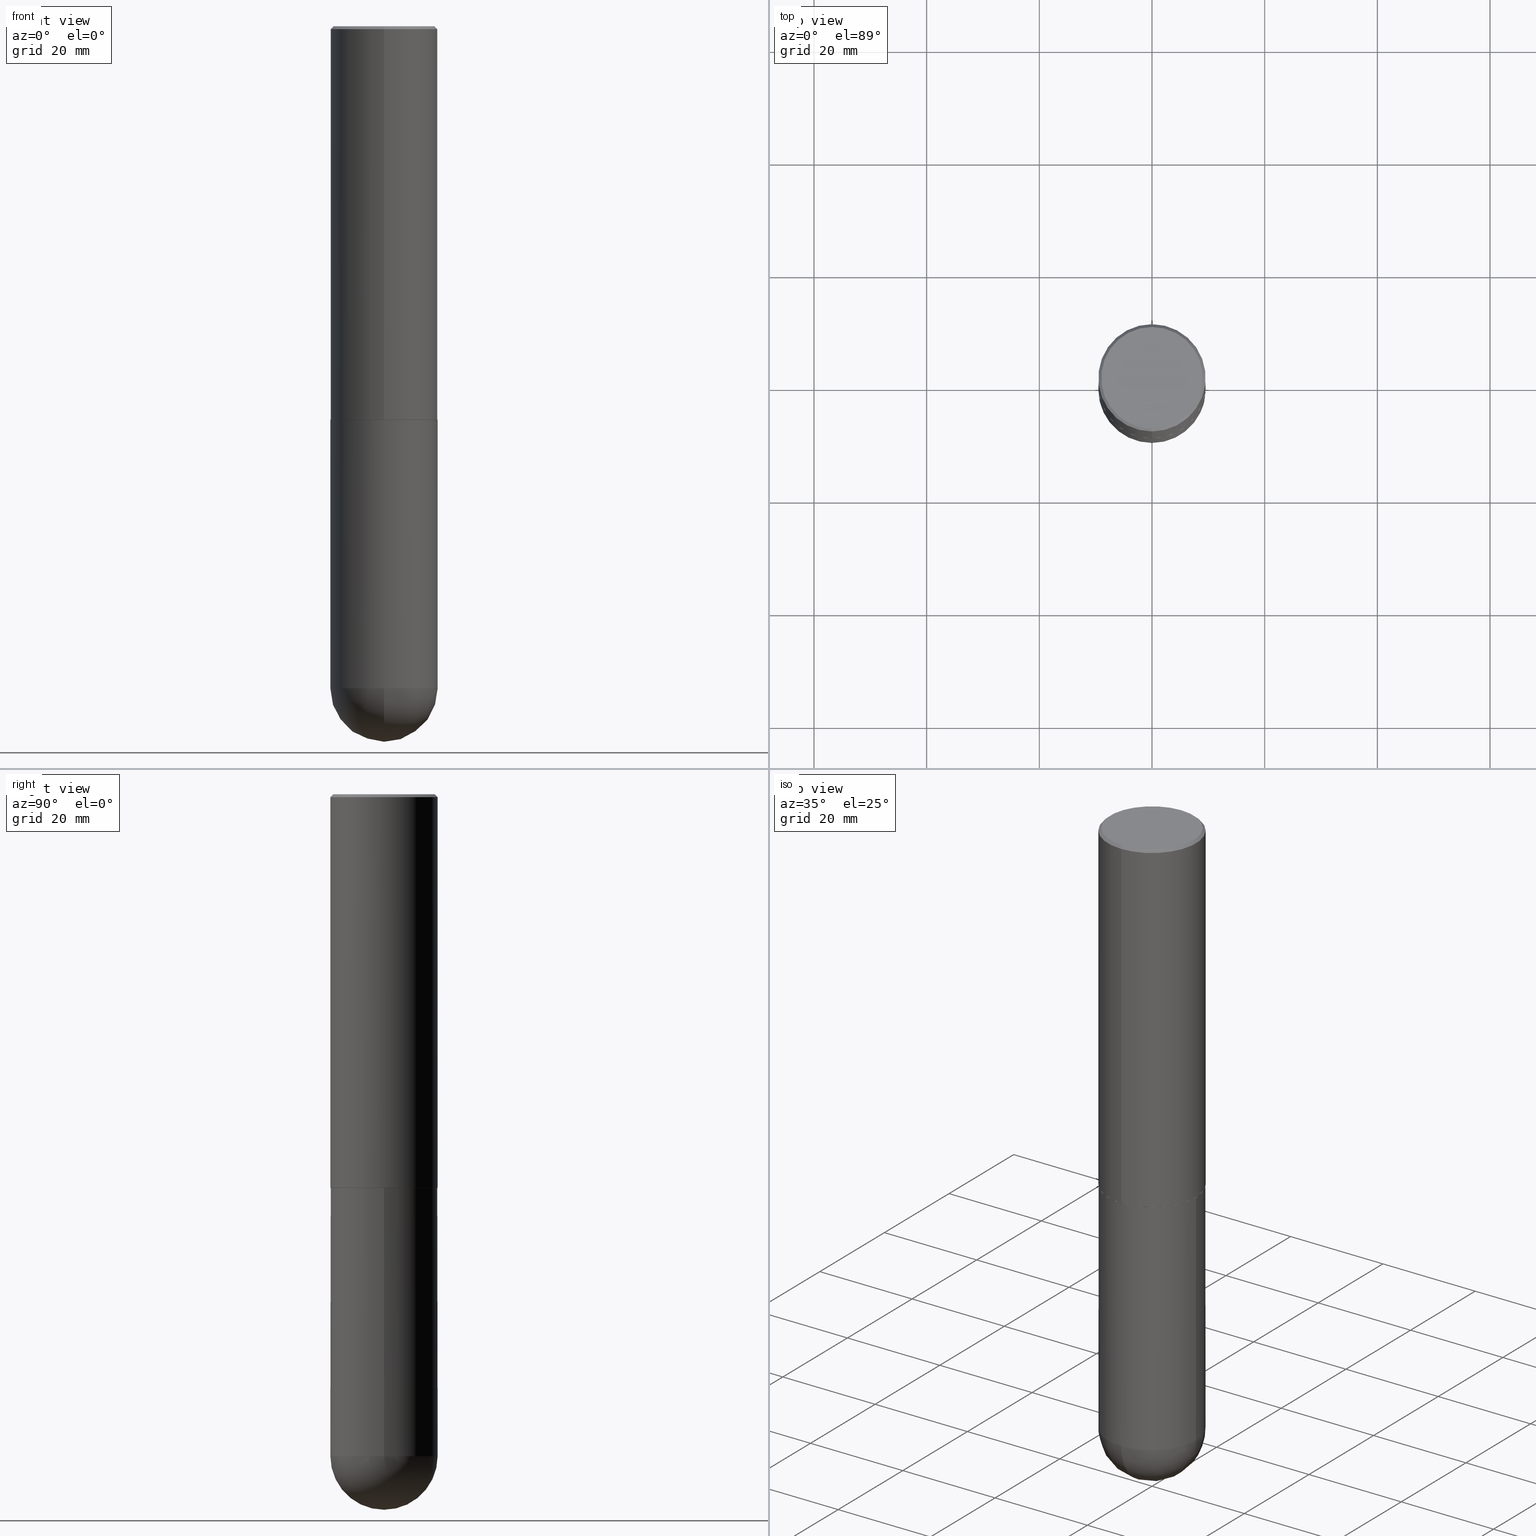
[diagram: canonical four-view strip — front | top / right | iso, engineering-drawing reading convention]
A machine part, canonical four-view strip (front | top / right | iso — engineering-drawing reading convention). The complete STEP part file that produces these views, byte-faithful:
ISO-10303-21;
HEADER;
FILE_DESCRIPTION (( 'STEP AP203' ),
    '1' );
FILE_NAME ('31778.STEP',
    '2024-02-21T16:52:32',
    ( '' ),
    ( '' ),
    'SwSTEP 2.0',
    'SolidWorks 2023',
    '' );
FILE_SCHEMA (( 'CONFIG_CONTROL_DESIGN' ));
ENDSEC;

DATA;
#1 = SPHERICAL_SURFACE ( 'NONE', #183, 0.3750000000000003886 ) ;
#2 = APPROVAL_STATUS ( 'not_yet_approved' ) ;
#3 = DIRECTION ( 'NONE',  ( 6.982962677686266711E-15, 1.000000000000000000, -2.913971193241878005E-15 ) ) ;
#4 = VERTEX_POINT ( 'NONE', #203 ) ;
#5 = CARTESIAN_POINT ( 'NONE',  ( 6.725039217009124520E-29, -9.601573681818649859E-15, -2.750000000000000000 ) ) ;
#6 = ORIENTED_EDGE ( 'NONE', *, *, #17, .T. ) ;
#7 = CARTESIAN_POINT ( 'NONE',  ( 2.664535259100411985E-15, 0.3749999999999907851, -2.749000000000000998 ) ) ;
#8 = ORIENTED_EDGE ( 'NONE', *, *, #128, .T. ) ;
#9 = ADVANCED_FACE ( 'NONE', ( #50 ), #375, .F. ) ;
#10 = AXIS2_PLACEMENT_3D ( 'NONE', #367, #11, #366 ) ;
#11 = DIRECTION ( 'NONE',  ( -2.445468806185136597E-29, 3.491481338843145583E-15, 1.000000000000000000 ) ) ;
#12 = VERTEX_POINT ( 'NONE', #169 ) ;
#13 = CARTESIAN_POINT ( 'NONE',  ( -2.572686749164323153E-15, -0.3750000000000000555, -0.01999999999999877570 ) ) ;
#14 = CC_DESIGN_PERSON_AND_ORGANIZATION_ASSIGNMENT ( #58, #307, ( #121 ) ) ;
#15 = CARTESIAN_POINT ( 'NONE',  ( 1.131029322860625676E-28, -1.614810119214955014E-14, -4.625000000000000000 ) ) ;
#16 = DIRECTION ( 'NONE',  ( 1.000000000000000000, -6.982962677686270655E-15, 0.000000000000000000 ) ) ;
#17 = EDGE_CURVE ( 'NONE', #292, #392, #373, .T. ) ;
#18 = LOCAL_TIME ( 11, 52, 32.00000000000000000, #253 ) ;
#19 = ORIENTED_EDGE ( 'NONE', *, *, #251, .T. ) ;
#20 = EDGE_CURVE ( 'NONE', #12, #4, #148, .T. ) ;
#21 = DIRECTION ( 'NONE',  ( 5.024295867790978808E-15, 0.7071067811869604647, 0.7071067811861345698 ) ) ;
#22 = ORIENTED_EDGE ( 'NONE', *, *, #257, .F. ) ;
#23 = PERSON_AND_ORGANIZATION ( #266, #273 ) ;
#24 = CARTESIAN_POINT ( 'NONE',  ( 6.724333203881776767E-29, -9.602584732800784249E-15, -2.750000000000000000 ) ) ;
#25 = DATE_AND_TIME ( #383, #18 ) ;
#26 = DIMENSIONAL_EXPONENTS ( 1.000000000000000000, 0.000000000000000000, 0.000000000000000000, 0.000000000000000000, 0.000000000000000000, 0.000000000000000000, 0.000000000000000000 ) ;
#27 = AXIS2_PLACEMENT_3D ( 'NONE', #15, #157, #16 ) ;
#28 = ADVANCED_FACE ( 'NONE', ( #316 ), #247, .T. ) ;
#29 = CLOSED_SHELL ( 'NONE', ( #28, #134, #364, #236, #84, #275, #9, #109 ) ) ;
#30 = PERSON_AND_ORGANIZATION_ROLE ( 'creator' ) ;
#31 = CALENDAR_DATE ( 2024, 21, 2 ) ;
#32 = DIRECTION ( 'NONE',  ( -2.445468806185136877E-29, 3.491481338843145188E-15, 1.000000000000000000 ) ) ;
#33 = VECTOR ( 'NONE', #32, 39.37007874015748143 ) ;
#34 = AXIS2_PLACEMENT_3D ( 'NONE', #361, #76, #193 ) ;
#35 = AXIS2_PLACEMENT_3D ( 'NONE', #163, #41, #226 ) ;
#36 = CARTESIAN_POINT ( 'NONE',  ( -4.804403837961357100E-45, 6.860857953616112441E-31, 1.964820920350397448E-16 ) ) ;
#37 = EDGE_LOOP ( 'NONE', ( #208, #185 ) ) ;
#38 = ORIENTED_EDGE ( 'NONE', *, *, #382, .T. ) ;
#39 = CYLINDRICAL_SURFACE ( 'NONE', #57, 0.3750000000000002220 ) ;
#40 = ORIENTED_EDGE ( 'NONE', *, *, #406, .T. ) ;
#41 = DIRECTION ( 'NONE',  ( -2.445212074138828297E-29, 3.491848993745739476E-15, 1.000000000000000000 ) ) ;
#42 = CARTESIAN_POINT ( 'NONE',  ( 2.618611004132417464E-15, 0.3749999999999903966, -2.750000000000000888 ) ) ;
#43 = FACE_OUTER_BOUND ( 'NONE', #356, .T. ) ;
#44 = DIRECTION ( 'NONE',  ( 2.438088387897960049E-29, -3.491481338843145188E-15, -1.000000000000000000 ) ) ;
#45 = DIRECTION ( 'NONE',  ( 1.000000000000000000, -6.982962677686270655E-15, 0.000000000000000000 ) ) ;
#46 = CONICAL_SURFACE ( 'NONE', #201, 0.3739999999999999991, 0.7853981633980288146 ) ;
#47 = CIRCLE ( 'NONE', #394, 0.3749999999999999445 ) ;
#48 = DIRECTION ( 'NONE',  ( -2.445468806185136877E-29, 3.491481338843145188E-15, 1.000000000000000000 ) ) ;
#49 = CLOSED_SHELL ( 'NONE', ( #397, #151, #175, #323, #370 ) ) ;
#50 = FACE_OUTER_BOUND ( 'NONE', #37, .T. ) ;
#51 = VERTEX_POINT ( 'NONE', #332 ) ;
#52 =( NAMED_UNIT ( * ) SI_UNIT ( $, .STERADIAN. ) SOLID_ANGLE_UNIT ( ) );
#53 = LINE ( 'NONE', #139, #89 ) ;
#54 = VERTEX_POINT ( 'NONE', #79 ) ;
#55 = CARTESIAN_POINT ( 'NONE',  ( 6.725039217009124520E-29, -9.601573681818649859E-15, -2.750000000000000000 ) ) ;
#56 = AXIS2_PLACEMENT_3D ( 'NONE', #297, #129, #135 ) ;
#57 = AXIS2_PLACEMENT_3D ( 'NONE', #159, #293, #106 ) ;
#58 = PERSON_AND_ORGANIZATION ( #266, #273 ) ;
#59 = DIRECTION ( 'NONE',  ( 6.982962677686266711E-15, 1.000000000000000000, -3.494488891895537218E-15 ) ) ;
#60 = EDGE_CURVE ( 'NONE', #395, #246, #330, .T. ) ;
#61 = COORDINATED_UNIVERSAL_TIME_OFFSET ( 5, 0, .BEHIND. ) ;
#62 = DIRECTION ( 'NONE',  ( -6.982962677686266711E-15, -1.000000000000000000, 3.491848993745739476E-15 ) ) ;
#63 = ORIENTED_EDGE ( 'NONE', *, *, #128, .F. ) ;
#64 = DATE_AND_TIME ( #248, #187 ) ;
#65 = DIRECTION ( 'NONE',  ( -2.445212074138828297E-29, 3.491848993745739476E-15, 1.000000000000000000 ) ) ;
#66 = ORIENTED_EDGE ( 'NONE', *, *, #410, .T. ) ;
#67 = MANIFOLD_SOLID_BREP ( 'Body-Move/Copy2[1]', #49 ) ;
#68 = VECTOR ( 'NONE', #48, 39.37007874015748143 ) ;
#69 = EDGE_CURVE ( 'NONE', #295, #12, #235, .T. ) ;
#70 = DIRECTION ( 'NONE',  ( -1.000000000000000000, 6.982962677686265922E-15, -4.876176775795935793E-29 ) ) ;
#71 = EDGE_LOOP ( 'NONE', ( #231, #264 ) ) ;
#72 = DIRECTION ( 'NONE',  ( -4.851104656540953231E-15, -0.7071067811865484609, -0.7071067811865465735 ) ) ;
#73 = APPROVAL ( #388, 'UNSPECIFIED' ) ;
#74 = FACE_OUTER_BOUND ( 'NONE', #92, .T. ) ;
#75 = ORIENTED_EDGE ( 'NONE', *, *, #69, .T. ) ;
#76 = DIRECTION ( 'NONE',  ( -2.445212074138828297E-29, 3.491848993745739476E-15, 1.000000000000000000 ) ) ;
#77 = CARTESIAN_POINT ( 'NONE',  ( 4.890424148277678035E-31, -6.983697987491508978E-17, -0.02000000000000008715 ) ) ;
#78 = ORIENTED_EDGE ( 'NONE', *, *, #251, .F. ) ;
#79 = CARTESIAN_POINT ( 'NONE',  ( -2.618611004132285330E-15, -0.3750000000000100475, -2.748999999999999222 ) ) ;
#80 = CARTESIAN_POINT ( 'NONE',  ( -0.3750000000000000555, -1.021030217788372194E-14, -2.750000000000000000 ) ) ;
#81 = DIRECTION ( 'NONE',  ( -6.982962677686265922E-15, -1.000000000000000000, 2.913971193241877216E-15 ) ) ;
#82 = CYLINDRICAL_SURFACE ( 'NONE', #240, 0.3750000000000002220 ) ;
#83 = CONICAL_SURFACE ( 'NONE', #289, 0.3749999999999999445, 0.7853981633974461696 ) ;
#84 = ADVANCED_FACE ( 'NONE', ( #43 ), #82, .T. ) ;
#85 = AXIS2_PLACEMENT_3D ( 'NONE', #274, #228, #45 ) ;
#86 = CARTESIAN_POINT ( 'NONE',  ( 2.618611004132350016E-15, 0.3749999999999998890, -0.02000000000000139513 ) ) ;
#87 = DIRECTION ( 'NONE',  ( 4.937700262164536998E-15, 0.7071067811865435759, -0.7071067811865514585 ) ) ;
#88 = ORIENTED_EDGE ( 'NONE', *, *, #113, .F. ) ;
#89 = VECTOR ( 'NONE', #114, 39.37007874015748143 ) ;
#90 = CC_DESIGN_APPROVAL ( #271, ( #341 ) ) ;
#91 = VERTEX_POINT ( 'NONE', #296 ) ;
#92 = EDGE_LOOP ( 'NONE', ( #280, #132, #209, #390, #267 ) ) ;
#93 = DATE_AND_TIME ( #408, #119 ) ;
#94 = DIRECTION ( 'NONE',  ( 2.445212074138828297E-29, -3.491848993745739476E-15, -1.000000000000000000 ) ) ;
#95 = PERSON_AND_ORGANIZATION ( #266, #273 ) ;
#96 = PERSON_AND_ORGANIZATION_ROLE ( 'design_supplier' ) ;
#97 = EDGE_CURVE ( 'NONE', #227, #395, #340, .T. ) ;
#98 = VECTOR ( 'NONE', #21, 39.37007874015748143 ) ;
#99 = ORIENTED_EDGE ( 'NONE', *, *, #60, .T. ) ;
#100 = CARTESIAN_POINT ( 'NONE',  ( -2.611628041454596160E-15, -0.3740000000000096581, -2.749999999999998224 ) ) ;
#101 = CARTESIAN_POINT ( 'NONE',  ( 6.721887991807639758E-29, -9.599092883807038608E-15, -2.749000000000000110 ) ) ;
#102 = EDGE_LOOP ( 'NONE', ( #261, #360, #322, #216 ) ) ;
#103 = LOCAL_TIME ( 11, 52, 32.00000000000000000, #174 ) ;
#104 = AXIS2_PLACEMENT_3D ( 'NONE', #36, #353, #62 ) ;
#105 = ORIENTED_EDGE ( 'NONE', *, *, #242, .T. ) ;
#106 = DIRECTION ( 'NONE',  ( -6.982962677686266711E-15, -1.000000000000000000, 3.491848993745739870E-15 ) ) ;
#107 = ORIENTED_EDGE ( 'NONE', *, *, #382, .F. ) ;
#108 = DIRECTION ( 'NONE',  ( 6.982962677686265922E-15, 1.000000000000000000, 0.000000000000000000 ) ) ;
#109 = ADVANCED_FACE ( 'NONE', ( #265 ), #196, .F. ) ;
#110 = DIRECTION ( 'NONE',  ( -6.982962677686266711E-15, -1.000000000000000000, 3.494488891895537218E-15 ) ) ;
#111 = CIRCLE ( 'NONE', #104, 0.3549999999999997602 ) ;
#112 = CARTESIAN_POINT ( 'NONE',  ( 6.724333203881775646E-29, -9.602584732800781093E-15, -2.749999999999999556 ) ) ;
#113 = EDGE_CURVE ( 'NONE', #398, #4, #372, .T. ) ;
#114 = DIRECTION ( 'NONE',  ( -2.445212074138828297E-29, 3.491848993745739476E-15, 1.000000000000000000 ) ) ;
#115 = ORIENTED_EDGE ( 'NONE', *, *, #60, .F. ) ;
#116 =( CONVERSION_BASED_UNIT ( 'INCH', #374 ) LENGTH_UNIT ( ) NAMED_UNIT ( #26 ) );
#117 = CC_DESIGN_PERSON_AND_ORGANIZATION_ASSIGNMENT ( #146, #30, ( #341 ) ) ;
#118 = VECTOR ( 'NONE', #65, 39.37007874015748143 ) ;
#119 = LOCAL_TIME ( 11, 52, 32.00000000000000000, #281 ) ;
#120 = DIRECTION ( 'NONE',  ( -1.000000000000000000, 6.982962677686266711E-15, -4.883557194083113462E-29 ) ) ;
#121 = SECURITY_CLASSIFICATION ( '', '', #123 ) ;
#122 = DATE_TIME_ROLE ( 'creation_date' ) ;
#123 = SECURITY_CLASSIFICATION_LEVEL ( 'unclassified' ) ;
#124 = CARTESIAN_POINT ( 'NONE',  ( 1.097917345069237163E-28, -1.662228356028959886E-14, -4.625000000000000000 ) ) ;
#125 = ORIENTED_EDGE ( 'NONE', *, *, #17, .F. ) ;
#126 = COORDINATED_UNIVERSAL_TIME_OFFSET ( 5, 0, .BEHIND. ) ;
#127 = DIRECTION ( 'NONE',  ( -2.445468806185136597E-29, 3.491481338843145583E-15, 1.000000000000000000 ) ) ;
#128 = EDGE_CURVE ( 'NONE', #295, #398, #268, .T. ) ;
#129 = DIRECTION ( 'NONE',  ( -2.445468806185136597E-29, 3.491481338843145583E-15, 1.000000000000000000 ) ) ;
#130 = ORIENTED_EDGE ( 'NONE', *, *, #113, .T. ) ;
#131 = AXIS2_PLACEMENT_3D ( 'NONE', #55, #176, #191 ) ;
#132 = ORIENTED_EDGE ( 'NONE', *, *, #257, .T. ) ;
#133 = APPLICATION_CONTEXT ( 'configuration controlled 3d designs of mechanical parts and assemblies' ) ;
#134 = ADVANCED_FACE ( 'NONE', ( #190 ), #39, .T. ) ;
#135 = DIRECTION ( 'NONE',  ( 1.000000000000000000, -6.982962677686265922E-15, 4.876176775795935793E-29 ) ) ;
#136 = DIRECTION ( 'NONE',  ( 1.000000000000000000, -6.982962677686270655E-15, 0.000000000000000000 ) ) ;
#137 = DIRECTION ( 'NONE',  ( -2.445212074138828297E-29, 3.491848993745739476E-15, 1.000000000000000000 ) ) ;
#138 = AXIS2_PLACEMENT_3D ( 'NONE', #254, #178, #260 ) ;
#139 = CARTESIAN_POINT ( 'NONE',  ( -2.618611004132351594E-15, -0.3750000000000002220, 1.309443372654653240E-15 ) ) ;
#140 = DIRECTION ( 'NONE',  ( 0.000000000000000000, 0.000000000000000000, 1.000000000000000000 ) ) ;
#141 = AXIS2_PLACEMENT_3D ( 'NONE', #24, #239, #172 ) ;
#142 = ORIENTED_EDGE ( 'NONE', *, *, #69, .F. ) ;
#143 = DIRECTION ( 'NONE',  ( -6.982962677686266711E-15, -1.000000000000000000, 3.494488891895537218E-15 ) ) ;
#144 = EDGE_CURVE ( 'NONE', #54, #392, #155, .T. ) ;
#145 = EDGE_LOOP ( 'NONE', ( #105, #6, #306, #363 ) ) ;
#146 = PERSON_AND_ORGANIZATION ( #266, #273 ) ;
#147 = CARTESIAN_POINT ( 'NONE',  ( 1.097917345069237163E-28, -1.662228356028959886E-14, -4.625000000000000000 ) ) ;
#148 = LINE ( 'NONE', #86, #411 ) ;
#149 = ORIENTED_EDGE ( 'NONE', *, *, #20, .F. ) ;
#150 = APPROVAL_PERSON_ORGANIZATION ( #344, #73, #310 ) ;
#151 = ADVANCED_FACE ( 'NONE', ( #245 ), #302, .T. ) ;
#152 = PRODUCT_DEFINITION_SHAPE ( 'NONE', 'NONE',  #341 ) ;
#153 = DATE_TIME_ROLE ( 'classification_date' ) ;
#154 = VECTOR ( 'NONE', #250, 39.37007874015748143 ) ;
#155 = CIRCLE ( 'NONE', #34, 0.3750000000000004441 ) ;
#156 =( GEOMETRIC_REPRESENTATION_CONTEXT ( 3 ) GLOBAL_UNCERTAINTY_ASSIGNED_CONTEXT ( ( #223 ) ) GLOBAL_UNIT_ASSIGNED_CONTEXT ( ( #116, #167, #52 ) ) REPRESENTATION_CONTEXT ( 'NONE', 'WORKASPACE' ) );
#157 = DIRECTION ( 'NONE',  ( -2.445468806185136597E-29, 3.491481338843145583E-15, 1.000000000000000000 ) ) ;
#158 = EDGE_LOOP ( 'NONE', ( #125, #189, #243, #107 ) ) ;
#159 = CARTESIAN_POINT ( 'NONE',  ( 0.000000000000000000, 0.000000000000000000, 0.000000000000000000 ) ) ;
#160 = ORIENTED_EDGE ( 'NONE', *, *, #285, .F. ) ;
#161 = FACE_OUTER_BOUND ( 'NONE', #308, .T. ) ;
#162 = DIRECTION ( 'NONE',  ( -2.445212074138828297E-29, 3.491848993745739476E-15, 1.000000000000000000 ) ) ;
#163 = CARTESIAN_POINT ( 'NONE',  ( 6.724333203881775646E-29, -9.602584732800781093E-15, -2.749999999999999556 ) ) ;
#164 = AXIS2_PLACEMENT_3D ( 'NONE', #5, #127, #219 ) ;
#165 = CC_DESIGN_SECURITY_CLASSIFICATION ( #121, ( #336 ) ) ;
#166 = AXIS2_PLACEMENT_3D ( 'NONE', #359, #326, #401 ) ;
#167 =( NAMED_UNIT ( * ) PLANE_ANGLE_UNIT ( ) SI_UNIT ( $, .RADIAN. ) );
#168 = EDGE_CURVE ( 'NONE', #54, #398, #53, .T. ) ;
#169 = CARTESIAN_POINT ( 'NONE',  ( 2.548781377355486324E-15, 0.3549999999999997602, -1.043124300744696816E-15 ) ) ;
#170 = EDGE_CURVE ( 'NONE', #392, #4, #288, .T. ) ;
#171 = ORIENTED_EDGE ( 'NONE', *, *, #97, .F. ) ;
#172 = DIRECTION ( 'NONE',  ( -6.982962677686265922E-15, -1.000000000000000000, 3.491848993745739476E-15 ) ) ;
#173 = ORIENTED_EDGE ( 'NONE', *, *, #217, .T. ) ;
#174 = COORDINATED_UNIVERSAL_TIME_OFFSET ( 5, 0, .BEHIND. ) ;
#175 = ADVANCED_FACE ( 'NONE', ( #211 ), #1, .T. ) ;
#176 = DIRECTION ( 'NONE',  ( -2.445468806185136597E-29, 3.491481338843145583E-15, 1.000000000000000000 ) ) ;
#177 = DIRECTION ( 'NONE',  ( 1.000000000000000000, 0.000000000000000000, 0.000000000000000000 ) ) ;
#178 = DIRECTION ( 'NONE',  ( -1.000000000000000000, 7.105427357601001070E-15, -4.926315508542082329E-29 ) ) ;
#179 = PERSON_AND_ORGANIZATION ( #266, #273 ) ;
#180 = CARTESIAN_POINT ( 'NONE',  ( 6.724333203881775646E-29, -9.602584732800781093E-15, -2.749999999999999556 ) ) ;
#181 = APPROVAL_DATE_TIME ( #25, #73 ) ;
#182 = EDGE_CURVE ( 'NONE', #259, #54, #345, .T. ) ;
#183 = AXIS2_PLACEMENT_3D ( 'NONE', #124, #258, #3 ) ;
#184 = DIRECTION ( 'NONE',  ( -2.445212074138828297E-29, 3.491848993745739476E-15, 1.000000000000000000 ) ) ;
#185 = ORIENTED_EDGE ( 'NONE', *, *, #313, .F. ) ;
#186 = AXIS2_PLACEMENT_3D ( 'NONE', #270, #298, #110 ) ;
#187 = LOCAL_TIME ( 11, 52, 32.00000000000000000, #126 ) ;
#188 = DIRECTION ( 'NONE',  ( 1.000000000000000000, -6.982962677686265922E-15, 4.883557194083112340E-29 ) ) ;
#189 = ORIENTED_EDGE ( 'NONE', *, *, #313, .T. ) ;
#190 = FACE_OUTER_BOUND ( 'NONE', #377, .T. ) ;
#191 = DIRECTION ( 'NONE',  ( 1.000000000000000000, -6.982962677686266711E-15, 0.000000000000000000 ) ) ;
#192 = ORIENTED_EDGE ( 'NONE', *, *, #406, .F. ) ;
#193 = DIRECTION ( 'NONE',  ( -6.982962677686265922E-15, -1.000000000000000000, 2.913971193241877216E-15 ) ) ;
#194 = DIRECTION ( 'NONE',  ( -2.445212074138828297E-29, 3.491848993745739476E-15, 1.000000000000000000 ) ) ;
#195 = EDGE_LOOP ( 'NONE', ( #63, #78, #309, #40 ) ) ;
#196 = PLANE ( 'NONE',  #197 ) ;
#197 = AXIS2_PLACEMENT_3D ( 'NONE', #237, #329, #328 ) ;
#198 = CARTESIAN_POINT ( 'NONE',  ( -2.572686749164323153E-15, -0.3750000000000000555, -0.01999999999999877570 ) ) ;
#199 = CYLINDRICAL_SURFACE ( 'NONE', #56, 0.3750000000000001110 ) ;
#200 = CARTESIAN_POINT ( 'NONE',  ( 0.000000000000000000, 0.000000000000000000, 0.000000000000000000 ) ) ;
#201 = AXIS2_PLACEMENT_3D ( 'NONE', #321, #184, #381 ) ;
#202 = APPLICATION_PROTOCOL_DEFINITION ( 'international standard', 'config_control_design', 1994, #312 ) ;
#203 = CARTESIAN_POINT ( 'NONE',  ( 2.618611004132350016E-15, 0.3749999999999998890, -0.02000000000000139513 ) ) ;
#204 = VERTEX_POINT ( 'NONE', #284 ) ;
#205 = LOCAL_TIME ( 11, 52, 32.00000000000000000, #61 ) ;
#206 = AXIS2_PLACEMENT_3D ( 'NONE', #180, #315, #389 ) ;
#207 = ORIENTED_EDGE ( 'NONE', *, *, #170, .T. ) ;
#208 = ORIENTED_EDGE ( 'NONE', *, *, #242, .F. ) ;
#209 = ORIENTED_EDGE ( 'NONE', *, *, #263, .F. ) ;
#210 = APPROVAL_DATE_TIME ( #93, #278 ) ;
#211 = FACE_OUTER_BOUND ( 'NONE', #102, .T. ) ;
#212 = CARTESIAN_POINT ( 'NONE',  ( 2.618611004132463218E-15, 0.3749999999999838463, -4.625000000000000888 ) ) ;
#213 = AXIS2_PLACEMENT_3D ( 'NONE', #234, #365, #136 ) ;
#214 = APPROVAL_STATUS ( 'not_yet_approved' ) ;
#215 = CARTESIAN_POINT ( 'NONE',  ( -2.664535259100265651E-15, -0.3750000000000165978, -4.624999999999999112 ) ) ;
#216 = ORIENTED_EDGE ( 'NONE', *, *, #348, .F. ) ;
#217 = EDGE_CURVE ( 'NONE', #91, #246, #357, .T. ) ;
#218 = APPLICATION_PROTOCOL_DEFINITION ( 'international standard', 'config_control_design', 1994, #133 ) ;
#219 = DIRECTION ( 'NONE',  ( 1.000000000000000000, -6.982962677686266711E-15, 0.000000000000000000 ) ) ;
#220 = APPROVAL_PERSON_ORGANIZATION ( #179, #271, #354 ) ;
#221 = CARTESIAN_POINT ( 'NONE',  ( -0.3750000000000001110, -1.021030217788372352E-14, -4.625000000000000000 ) ) ;
#222 = ORIENTED_EDGE ( 'NONE', *, *, #348, .T. ) ;
#223 = UNCERTAINTY_MEASURE_WITH_UNIT (LENGTH_MEASURE( 1.000000000000000082E-05 ), #116, 'distance_accuracy_value', 'NONE');
#224 = CIRCLE ( 'NONE', #131, 0.3750000000000000555 ) ;
#225 = PRODUCT ( '31778', '31778', '', ( #350 ) ) ;
#226 = DIRECTION ( 'NONE',  ( -6.982962677686266711E-15, -1.000000000000000000, 2.921762560068730595E-15 ) ) ;
#227 = VERTEX_POINT ( 'NONE', #212 ) ;
#228 = DIRECTION ( 'NONE',  ( -2.445468806185136597E-29, 3.491481338843145583E-15, 1.000000000000000000 ) ) ;
#229 = CC_DESIGN_DATE_AND_TIME_ASSIGNMENT ( #286, #153, ( #121 ) ) ;
#230 = CARTESIAN_POINT ( 'NONE',  ( -2.504081769186607427E-15, -0.3549999999999997602, 1.436088484814776552E-15 ) ) ;
#231 = ORIENTED_EDGE ( 'NONE', *, *, #263, .T. ) ;
#232 = DIRECTION ( 'NONE',  ( -2.445212074138828297E-29, 3.491848993745739476E-15, 1.000000000000000000 ) ) ;
#233 = FACE_OUTER_BOUND ( 'NONE', #379, .T. ) ;
#234 = CARTESIAN_POINT ( 'NONE',  ( 1.131029322860625676E-28, -1.614810119214955014E-14, -4.625000000000000000 ) ) ;
#235 = CIRCLE ( 'NONE', #386, 0.3549999999999997602 ) ;
#236 = ADVANCED_FACE ( 'NONE', ( #351 ), #83, .T. ) ;
#237 = CARTESIAN_POINT ( 'NONE',  ( 2.478951750578623026E-15, 0.3549999999999997602, -1.141365346762216750E-15 ) ) ;
#238 = CONICAL_SURFACE ( 'NONE', #337, 0.3749999999999999445, 0.7853981633974461696 ) ;
#239 = DIRECTION ( 'NONE',  ( -2.445212074138828017E-29, 3.491848993745739476E-15, 1.000000000000000000 ) ) ;
#240 = AXIS2_PLACEMENT_3D ( 'NONE', #200, #232, #334 ) ;
#241 =( LENGTH_UNIT ( ) NAMED_UNIT ( * ) SI_UNIT ( $, .METRE. ) );
#242 = EDGE_CURVE ( 'NONE', #259, #292, #403, .T. ) ;
#243 = ORIENTED_EDGE ( 'NONE', *, *, #182, .T. ) ;
#244 = ORIENTED_EDGE ( 'NONE', *, *, #168, .F. ) ;
#245 = FACE_OUTER_BOUND ( 'NONE', #327, .T. ) ;
#246 = VERTEX_POINT ( 'NONE', #215 ) ;
#247 = CONICAL_SURFACE ( 'NONE', #305, 0.3739999999999999991, 0.7853981633980288146 ) ;
#248 = CALENDAR_DATE ( 2024, 21, 2 ) ;
#249 = CC_DESIGN_APPROVAL ( #73, ( #336 ) ) ;
#250 = DIRECTION ( 'NONE',  ( -4.937700262167413974E-15, -0.7071067811869555797, 0.7071067811861394548 ) ) ;
#251 = EDGE_CURVE ( 'NONE', #12, #295, #111, .T. ) ;
#252 = DATE_AND_TIME ( #412, #103 ) ;
#253 = COORDINATED_UNIVERSAL_TIME_OFFSET ( 5, 0, .BEHIND. ) ;
#254 = CARTESIAN_POINT ( 'NONE',  ( 1.097917345069237163E-28, -1.662228356028959886E-14, -4.625000000000000000 ) ) ;
#255 = APPROVAL_ROLE ( '' ) ;
#256 = APPROVAL_PERSON_ORGANIZATION ( #23, #278, #255 ) ;
#257 = EDGE_CURVE ( 'NONE', #395, #346, #311, .T. ) ;
#258 = DIRECTION ( 'NONE',  ( -1.000000000000000000, 6.982962677686266711E-15, -4.883557194083113462E-29 ) ) ;
#259 = VERTEX_POINT ( 'NONE', #100 ) ;
#260 = DIRECTION ( 'NONE',  ( -7.105427357600999492E-15, -1.000000000000000000, 0.000000000000000000 ) ) ;
#261 = ORIENTED_EDGE ( 'NONE', *, *, #217, .F. ) ;
#262 = CC_DESIGN_DATE_AND_TIME_ASSIGNMENT ( #64, #122, ( #341 ) ) ;
#263 = EDGE_CURVE ( 'NONE', #51, #346, #301, .T. ) ;
#264 = ORIENTED_EDGE ( 'NONE', *, *, #285, .T. ) ;
#265 = FACE_OUTER_BOUND ( 'NONE', #277, .T. ) ;
#266 = PERSON ( 'UNSPECIFIED', 'UNSPECIFIED', 'UNSPECIFIED', ('UNSPECIFIED'), ('UNSPECIFIED'), ('UNSPECIFIED') ) ;
#267 = ORIENTED_EDGE ( 'NONE', *, *, #405, .T. ) ;
#268 = LINE ( 'NONE', #13, #300 ) ;
#269 = CARTESIAN_POINT ( 'NONE',  ( 1.097917345069237163E-28, -1.662228356028959886E-14, -4.625000000000000000 ) ) ;
#270 = CARTESIAN_POINT ( 'NONE',  ( 4.890424148277678035E-31, -6.983697987491508978E-17, -0.02000000000000008715 ) ) ;
#271 = APPROVAL ( #2, 'UNSPECIFIED' ) ;
#272 = AXIS2_PLACEMENT_3D ( 'NONE', #147, #120, #369 ) ;
#273 = ORGANIZATION ( 'UNSPECIFIED', 'UNSPECIFIED', '' ) ;
#274 = CARTESIAN_POINT ( 'NONE',  ( 1.131029322860625676E-28, -1.614810119214955014E-14, -4.625000000000000000 ) ) ;
#275 = ADVANCED_FACE ( 'NONE', ( #355 ), #46, .T. ) ;
#276 = DIRECTION ( 'NONE',  ( -2.445212074138828297E-29, 3.491848993745739476E-15, 1.000000000000000000 ) ) ;
#277 = EDGE_LOOP ( 'NONE', ( #19, #75 ) ) ;
#278 = APPROVAL ( #214, 'UNSPECIFIED' ) ;
#279 = LINE ( 'NONE', #404, #68 ) ;
#280 = ORIENTED_EDGE ( 'NONE', *, *, #97, .T. ) ;
#281 = COORDINATED_UNIVERSAL_TIME_OFFSET ( 5, 0, .BEHIND. ) ;
#282 = CIRCLE ( 'NONE', #166, 0.3750000000000001110 ) ;
#283 = DESIGN_CONTEXT ( 'detailed design', #133, 'design' ) ;
#284 = CARTESIAN_POINT ( 'NONE',  ( 0.3750000000000001110, -1.549344844111645238E-14, -4.625000000000000000 ) ) ;
#285 = EDGE_CURVE ( 'NONE', #346, #51, #224, .T. ) ;
#286 = DATE_AND_TIME ( #31, #205 ) ;
#287 = CARTESIAN_POINT ( 'NONE',  ( 4.890424148277678035E-31, -6.983697987491508978E-17, -0.02000000000000008715 ) ) ;
#288 = LINE ( 'NONE', #387, #118 ) ;
#289 = AXIS2_PLACEMENT_3D ( 'NONE', #287, #94, #59 ) ;
#290 = SHAPE_DEFINITION_REPRESENTATION ( #152, #376 ) ;
#291 = CARTESIAN_POINT ( 'NONE',  ( 2.660982545421643429E-15, 0.3739999999999903957, -2.750000000000000444 ) ) ;
#292 = VERTEX_POINT ( 'NONE', #291 ) ;
#293 = DIRECTION ( 'NONE',  ( -2.445212074138828297E-29, 3.491848993745739476E-15, 1.000000000000000000 ) ) ;
#294 = AXIS2_PLACEMENT_3D ( 'NONE', #269, #188, #108 ) ;
#295 = VERTEX_POINT ( 'NONE', #230 ) ;
#296 = CARTESIAN_POINT ( 'NONE',  ( 1.191225862093391378E-28, -1.790862693487176734E-14, -5.000000000000000000 ) ) ;
#297 = CARTESIAN_POINT ( 'NONE',  ( 0.000000000000000000, 0.000000000000000000, 0.000000000000000000 ) ) ;
#298 = DIRECTION ( 'NONE',  ( -2.445212074138828297E-29, 3.491848993745739476E-15, 1.000000000000000000 ) ) ;
#299 = AXIS2_PLACEMENT_3D ( 'NONE', #42, #44, #70 ) ;
#300 = VECTOR ( 'NONE', #72, 39.37007874015748143 ) ;
#301 = CIRCLE ( 'NONE', #164, 0.3750000000000000555 ) ;
#302 = SPHERICAL_SURFACE ( 'NONE', #272, 0.3750000000000003886 ) ;
#303 = CARTESIAN_POINT ( 'NONE',  ( 0.000000000000000000, 0.000000000000000000, 0.000000000000000000 ) ) ;
#304 = CARTESIAN_POINT ( 'NONE',  ( 2.657429831742841742E-15, 0.3739999999999903957, -2.750000000000000444 ) ) ;
#305 = AXIS2_PLACEMENT_3D ( 'NONE', #112, #137, #396 ) ;
#306 = ORIENTED_EDGE ( 'NONE', *, *, #144, .F. ) ;
#307 = PERSON_AND_ORGANIZATION_ROLE ( 'classification_officer' ) ;
#308 = EDGE_LOOP ( 'NONE', ( #22, #99, #222, #66, #160 ) ) ;
#309 = ORIENTED_EDGE ( 'NONE', *, *, #20, .T. ) ;
#310 = APPROVAL_ROLE ( '' ) ;
#311 = LINE ( 'NONE', #318, #33 ) ;
#312 = APPLICATION_CONTEXT ( 'configuration controlled 3d designs of mechanical parts and assemblies' ) ;
#313 = EDGE_CURVE ( 'NONE', #292, #259, #342, .T. ) ;
#314 = PERSON_AND_ORGANIZATION_ROLE ( 'creator' ) ;
#315 = DIRECTION ( 'NONE',  ( -2.445212074138828297E-29, 3.491848993745739476E-15, 1.000000000000000000 ) ) ;
#316 = FACE_OUTER_BOUND ( 'NONE', #145, .T. ) ;
#317 = PERSON_AND_ORGANIZATION ( #266, #273 ) ;
#318 = CARTESIAN_POINT ( 'NONE',  ( -0.3750000000000001110, 2.664535259100376486E-15, -1.844600658845590159E-29 ) ) ;
#319 = ORIENTED_EDGE ( 'NONE', *, *, #144, .T. ) ;
#320 = CIRCLE ( 'NONE', #294, 0.3750000000000003886 ) ;
#321 = CARTESIAN_POINT ( 'NONE',  ( 6.724333203881775646E-29, -9.602584732800781093E-15, -2.749999999999999556 ) ) ;
#322 = ORIENTED_EDGE ( 'NONE', *, *, #405, .F. ) ;
#323 = ADVANCED_FACE ( 'NONE', ( #391 ), #362, .F. ) ;
#324 = CYLINDRICAL_SURFACE ( 'NONE', #10, 0.3750000000000001110 ) ;
#325 = ORIENTED_EDGE ( 'NONE', *, *, #335, .F. ) ;
#326 = DIRECTION ( 'NONE',  ( -2.445468806185136597E-29, 3.491481338843145583E-15, 1.000000000000000000 ) ) ;
#327 = EDGE_LOOP ( 'NONE', ( #325, #173, #115, #171 ) ) ;
#328 = DIRECTION ( 'NONE',  ( 6.982962677686265922E-15, 1.000000000000000000, -3.491848993745739476E-15 ) ) ;
#329 = DIRECTION ( 'NONE',  ( 2.445212074138828017E-29, -3.491848993745739476E-15, -1.000000000000000000 ) ) ;
#330 = CIRCLE ( 'NONE', #213, 0.3750000000000001110 ) ;
#331 = CC_DESIGN_PERSON_AND_ORGANIZATION_ASSIGNMENT ( #380, #352, ( #225 ) ) ;
#332 = CARTESIAN_POINT ( 'NONE',  ( 0.3750000000000000555, -1.222018468595100145E-14, -2.750000000000000000 ) ) ;
#333 = DIRECTION ( 'NONE',  ( 6.982962677686266711E-15, 1.000000000000000000, -3.494488891895537218E-15 ) ) ;
#334 = DIRECTION ( 'NONE',  ( -6.982962677686266711E-15, -1.000000000000000000, 3.491848993745739870E-15 ) ) ;
#335 = EDGE_CURVE ( 'NONE', #91, #227, #320, .T. ) ;
#336 = PRODUCT_DEFINITION_FORMATION_WITH_SPECIFIED_SOURCE ( 'ANY', '', #225, .NOT_KNOWN. ) ;
#337 = AXIS2_PLACEMENT_3D ( 'NONE', #77, #402, #333 ) ;
#338 = MANIFOLD_SOLID_BREP ( 'Body-Move/Copy2[2]', #29 ) ;
#339 = CARTESIAN_POINT ( 'NONE',  ( 4.890424148277678035E-31, -6.983697987491508978E-17, -0.02000000000000008715 ) ) ;
#340 = CIRCLE ( 'NONE', #85, 0.3750000000000001110 ) ;
#341 = PRODUCT_DEFINITION ( 'UNKNOWN', '', #336, #283 ) ;
#342 = CIRCLE ( 'NONE', #35, 0.3739999999999999991 ) ;
#343 = ORIENTED_EDGE ( 'NONE', *, *, #168, .T. ) ;
#344 = PERSON_AND_ORGANIZATION ( #266, #273 ) ;
#345 = LINE ( 'NONE', #349, #154 ) ;
#346 = VERTEX_POINT ( 'NONE', #80 ) ;
#347 = APPROVAL_DATE_TIME ( #252, #271 ) ;
#348 = EDGE_CURVE ( 'NONE', #246, #204, #371, .T. ) ;
#349 = CARTESIAN_POINT ( 'NONE',  ( -2.611628041454596160E-15, -0.3740000000000096581, -2.749999999999998224 ) ) ;
#350 = MECHANICAL_CONTEXT ( 'NONE', #312, 'mechanical' ) ;
#351 = FACE_OUTER_BOUND ( 'NONE', #195, .T. ) ;
#352 = PERSON_AND_ORGANIZATION_ROLE ( 'design_owner' ) ;
#353 = DIRECTION ( 'NONE',  ( -2.445212074138828297E-29, 3.491848993745739476E-15, 1.000000000000000000 ) ) ;
#354 = APPROVAL_ROLE ( '' ) ;
#355 = FACE_OUTER_BOUND ( 'NONE', #158, .T. ) ;
#356 = EDGE_LOOP ( 'NONE', ( #407, #38, #343, #192 ) ) ;
#357 = CIRCLE ( 'NONE', #138, 0.3750000000000003886 ) ;
#358 = AXIS2_PLACEMENT_3D ( 'NONE', #101, #194, #81 ) ;
#359 = CARTESIAN_POINT ( 'NONE',  ( 1.131029322860625676E-28, -1.614810119214955014E-14, -4.625000000000000000 ) ) ;
#360 = ORIENTED_EDGE ( 'NONE', *, *, #335, .T. ) ;
#361 = CARTESIAN_POINT ( 'NONE',  ( 6.721887991807639758E-29, -9.599092883807038608E-15, -2.749000000000000110 ) ) ;
#362 = PLANE ( 'NONE',  #299 ) ;
#363 = ORIENTED_EDGE ( 'NONE', *, *, #182, .F. ) ;
#364 = ADVANCED_FACE ( 'NONE', ( #233 ), #238, .T. ) ;
#365 = DIRECTION ( 'NONE',  ( -2.445468806185136597E-29, 3.491481338843145583E-15, 1.000000000000000000 ) ) ;
#366 = DIRECTION ( 'NONE',  ( 1.000000000000000000, -6.982962677686265922E-15, 4.876176775795935793E-29 ) ) ;
#367 = CARTESIAN_POINT ( 'NONE',  ( 0.000000000000000000, 0.000000000000000000, 0.000000000000000000 ) ) ;
#368 = DIRECTION ( 'NONE',  ( -6.982962677686266711E-15, -1.000000000000000000, 3.491848993745739476E-15 ) ) ;
#369 = DIRECTION ( 'NONE',  ( 6.982962677686266711E-15, 1.000000000000000000, -2.913971193241878005E-15 ) ) ;
#370 = ADVANCED_FACE ( 'NONE', ( #161 ), #324, .T. ) ;
#371 = CIRCLE ( 'NONE', #27, 0.3750000000000001110 ) ;
#372 = CIRCLE ( 'NONE', #186, 0.3749999999999999445 ) ;
#373 = LINE ( 'NONE', #304, #98 ) ;
#374 = LENGTH_MEASURE_WITH_UNIT ( LENGTH_MEASURE( 0.02539999999999999897 ), #241 );
#375 = PLANE ( 'NONE',  #141 ) ;
#376 = ADVANCED_BREP_SHAPE_REPRESENTATION ( '31778', ( #67, #338, #409 ), #156 ) ;
#377 = EDGE_LOOP ( 'NONE', ( #319, #207, #88, #244 ) ) ;
#378 = CIRCLE ( 'NONE', #358, 0.3750000000000004441 ) ;
#379 = EDGE_LOOP ( 'NONE', ( #142, #8, #130, #149 ) ) ;
#380 = PERSON_AND_ORGANIZATION ( #266, #273 ) ;
#381 = DIRECTION ( 'NONE',  ( -6.982962677686266711E-15, -1.000000000000000000, 2.921762560068730595E-15 ) ) ;
#382 = EDGE_CURVE ( 'NONE', #392, #54, #378, .T. ) ;
#383 = CALENDAR_DATE ( 2024, 21, 2 ) ;
#384 = PRODUCT_RELATED_PRODUCT_CATEGORY ( 'detail', '', ( #225 ) ) ;
#385 = CC_DESIGN_APPROVAL ( #278, ( #121 ) ) ;
#386 = AXIS2_PLACEMENT_3D ( 'NONE', #399, #162, #368 ) ;
#387 = CARTESIAN_POINT ( 'NONE',  ( 2.664535259100376880E-15, 0.3750000000000002220, -1.309443372654653240E-15 ) ) ;
#388 = APPROVAL_STATUS ( 'not_yet_approved' ) ;
#389 = DIRECTION ( 'NONE',  ( -6.982962677686266711E-15, -1.000000000000000000, 2.921762560068730595E-15 ) ) ;
#390 = ORIENTED_EDGE ( 'NONE', *, *, #410, .F. ) ;
#391 = FACE_OUTER_BOUND ( 'NONE', #71, .T. ) ;
#392 = VERTEX_POINT ( 'NONE', #7 ) ;
#393 = CC_DESIGN_PERSON_AND_ORGANIZATION_ASSIGNMENT ( #317, #314, ( #336 ) ) ;
#394 = AXIS2_PLACEMENT_3D ( 'NONE', #339, #276, #143 ) ;
#395 = VERTEX_POINT ( 'NONE', #221 ) ;
#396 = DIRECTION ( 'NONE',  ( -6.982962677686266711E-15, -1.000000000000000000, 2.921762560068730595E-15 ) ) ;
#397 = ADVANCED_FACE ( 'NONE', ( #74 ), #199, .T. ) ;
#398 = VERTEX_POINT ( 'NONE', #198 ) ;
#399 = CARTESIAN_POINT ( 'NONE',  ( -4.804403837961357100E-45, 6.860857953616112441E-31, 1.964820920350397448E-16 ) ) ;
#400 = CC_DESIGN_PERSON_AND_ORGANIZATION_ASSIGNMENT ( #95, #96, ( #336 ) ) ;
#401 = DIRECTION ( 'NONE',  ( 1.000000000000000000, -6.982962677686270655E-15, 0.000000000000000000 ) ) ;
#402 = DIRECTION ( 'NONE',  ( 2.445212074138828297E-29, -3.491848993745739476E-15, -1.000000000000000000 ) ) ;
#403 = CIRCLE ( 'NONE', #206, 0.3739999999999999991 ) ;
#404 = CARTESIAN_POINT ( 'NONE',  ( 0.3750000000000001110, -2.618611004132350411E-15, 1.828566290923476483E-29 ) ) ;
#405 = EDGE_CURVE ( 'NONE', #204, #227, #282, .T. ) ;
#406 = EDGE_CURVE ( 'NONE', #4, #398, #47, .T. ) ;
#407 = ORIENTED_EDGE ( 'NONE', *, *, #170, .F. ) ;
#408 = CALENDAR_DATE ( 2024, 21, 2 ) ;
#409 = AXIS2_PLACEMENT_3D ( 'NONE', #303, #140, #177 ) ;
#410 = EDGE_CURVE ( 'NONE', #204, #51, #279, .T. ) ;
#411 = VECTOR ( 'NONE', #87, 39.37007874015748143 ) ;
#412 = CALENDAR_DATE ( 2024, 21, 2 ) ;
ENDSEC;
END-ISO-10303-21;
